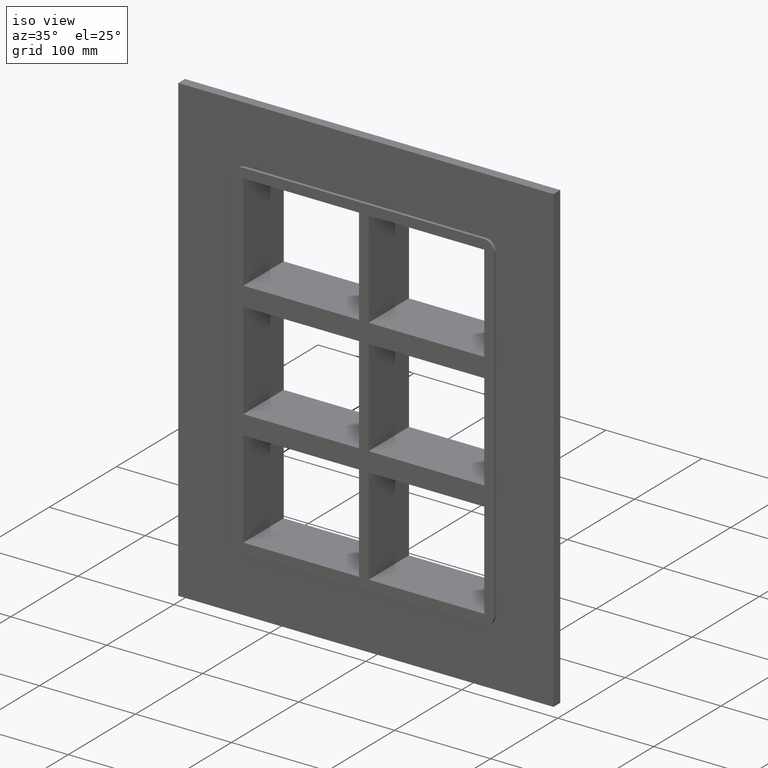
[diagram: clean part render]
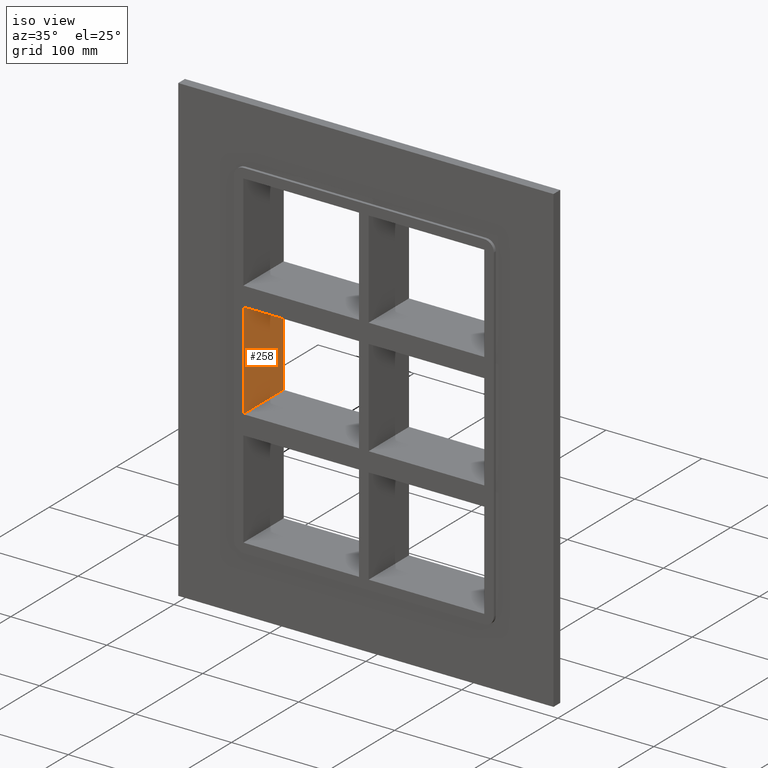
[diagram: same view with one face highlighted and labeled with its STEP entity id]
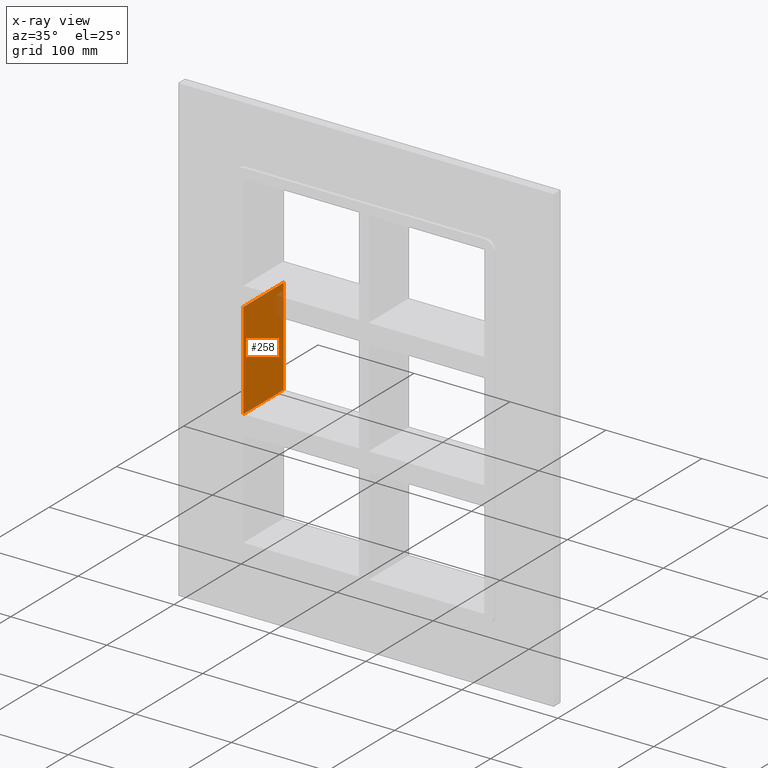
[diagram: x-ray of the same camera — body ghosted, the highlighted face saturated]
A machine part, iso view. The second image highlights one B-rep face of the part: STEP entity #258.
The next image is the same camera in x-ray: the body ghosted, the highlighted face saturated — about 5% of this face is hidden behind the body in this view.
In plain terms, the highlighted planar face has unit normal (-1, 0, 0).
Its self-contained STEP definition (entity closure, byte-faithful):
#203=CARTESIAN_POINT('',(-125.4999999999997,-3.0,50.499999999990521));
#204=VERTEX_POINT('',#203);
#211=CARTESIAN_POINT('',(-125.4999999999997,57.0,50.499999999990521));
#212=VERTEX_POINT('',#211);
#213=CARTESIAN_POINT('',(-125.5,57.000000000000007,50.499999999990507));
#214=DIRECTION('',(0.0,-1.0,0.0));
#215=VECTOR('',#214,60.000000000000007);
#216=LINE('',#213,#215);
#217=EDGE_CURVE('',#212,#204,#216,.T.);
#228=CARTESIAN_POINT('',(-125.5,0.0,-171.50000000000003));
#229=DIRECTION('',(-1.0,0.0,0.0));
#230=DIRECTION('',(0.0,0.0,1.0));
#231=AXIS2_PLACEMENT_3D('',#228,#229,#230);
#232=PLANE('',#231);
#233=ORIENTED_EDGE('',*,*,#217,.T.);
#234=CARTESIAN_POINT('',(-125.4999999999997,-3.0,-50.500000000000114));
#235=VERTEX_POINT('',#234);
#236=CARTESIAN_POINT('',(-125.5,-3.0,-50.500000000000114));
#237=DIRECTION('',(0.0,0.0,1.0));
#238=VECTOR('',#237,100.99999999999064);
#239=LINE('',#236,#238);
#240=EDGE_CURVE('',#235,#204,#239,.T.);
#241=ORIENTED_EDGE('',*,*,#240,.F.);
#242=CARTESIAN_POINT('',(-125.4999999999997,57.0,-50.500000000000114));
#243=VERTEX_POINT('',#242);
#244=CARTESIAN_POINT('',(-125.5,-3.0,-50.500000000000114));
#245=DIRECTION('',(0.0,1.0,0.0));
#246=VECTOR('',#245,60.000000000000007);
#247=LINE('',#244,#246);
#248=EDGE_CURVE('',#235,#243,#247,.T.);
#249=ORIENTED_EDGE('',*,*,#248,.T.);
#250=CARTESIAN_POINT('',(-125.5,57.0,50.499999999990521));
#251=DIRECTION('',(0.0,0.0,-1.0));
#252=VECTOR('',#251,100.99999999999064);
#253=LINE('',#250,#252);
#254=EDGE_CURVE('',#212,#243,#253,.T.);
#255=ORIENTED_EDGE('',*,*,#254,.F.);
#256=EDGE_LOOP('',(#233,#241,#249,#255));
#257=FACE_OUTER_BOUND('',#256,.T.);
#258=ADVANCED_FACE('',(#257),#232,.F.);